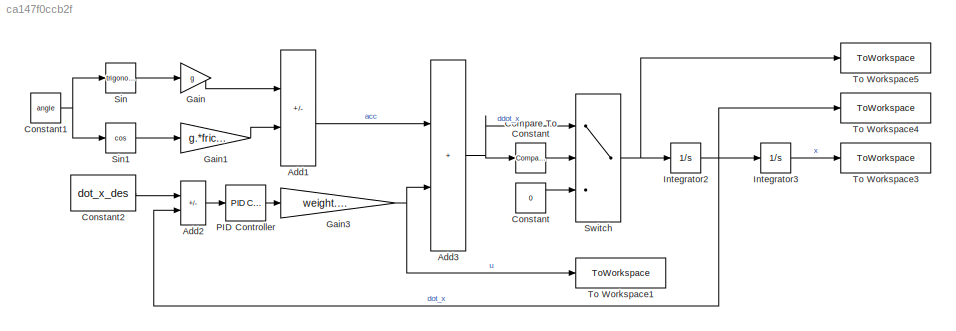
MODEL slx_ca147f0ccb2f
KIND model
CONFIG AbsTol = auto
CONFIG EnableMultiTasking = off
CONFIG FixedStep = auto
CONFIG MaxStep = 0.01
CONFIG MinStep = auto
CONFIG RelTol = 1e-3
CONFIG SampleTimeConstraint = Unconstrained
CONFIG SolverName = VariableStepAuto
CONFIG StartTime = 0.0
CONFIG StopTime = 5
BLOCK [Sum] Add1
  IconShape = rectangular
  Inputs = +-
BLOCK [Sum] Add2
  IconShape = rectangular
  Inputs = +-
BLOCK [Sum] Add3
  IconShape = rectangular
BLOCK [Reference] Compare To Constant  REF=simulink/Logic and Bit
Operations/Compare
To Constant
  SourceBlock = simulink/Logic and Bit\nOperations/Compare\nTo Constant
  SourceType = Compare To Constant
BLOCK [Constant] Constant
  Value = 0
BLOCK [Constant] Constant1
  Value = angle
BLOCK [Constant] Constant2
  Value = dot_x_des
BLOCK [Gain] Gain
  Gain = g
BLOCK [Gain] Gain1
  Gain = g.*friction
BLOCK [Gain] Gain3
  Gain = weight./friction
BLOCK [Integrator] Integrator2
BLOCK [Integrator] Integrator3
  UpperSaturationLimit = length
BLOCK [Reference] PID Controller  REF=slpidlib/PID Controller
  LibrarySourceBlock = simulink/Continuous/PID Controller
  SourceBlock = slpidlib/PID Controller
  SourceType = PID 1dof
BLOCK [Trigonometry] Sin
BLOCK [Trigonometry] Sin1
  Operator = cos
BLOCK [Switch] Switch
  Criteria = u2 > Threshold
  InputSameDT = off
  SaturateOnIntegerOverflow = off
BLOCK [ToWorkspace] To Workspace1
  FixptAsFi = on
  MaxDataPoints = inf
  SampleTime = -1
  SaveFormat = Timeseries
  VariableName = u
BLOCK [ToWorkspace] To Workspace3
  FixptAsFi = on
  MaxDataPoints = inf
  SampleTime = -1
  SaveFormat = Timeseries
  VariableName = x
BLOCK [ToWorkspace] To Workspace4
  FixptAsFi = on
  MaxDataPoints = inf
  SampleTime = -1
  SaveFormat = Timeseries
  VariableName = dot_x
BLOCK [ToWorkspace] To Workspace5
  FixptAsFi = on
  MaxDataPoints = inf
  SampleTime = -1
  SaveFormat = Timeseries
  VariableName = ddot_x
LINE Add1:1 -> Add3:1
LINE Add2:1 -> PID Controller:1
NET Add3:1 -> Compare To Constant:1, Switch:1
LINE Compare To Constant:1 -> Switch:2
NET Constant1:1 -> Sin1:1, Sin:1
LINE Constant2:1 -> Add2:1
LINE Constant:1 -> Switch:3
LINE Gain1:1 -> Add1:2
NET Gain3:1 -> Add3:2, To Workspace1:1
LINE Gain:1 -> Add1:1
NET Integrator2:1 -> Add2:2, Integrator3:1, To Workspace4:1
LINE Integrator3:1 -> To Workspace3:1
LINE PID Controller:1 -> Gain3:1
LINE Sin1:1 -> Gain1:1
LINE Sin:1 -> Gain:1
NET Switch:1 -> Integrator2:1, To Workspace5:1
note: NET lines group one-source signal fan-out (src -> all destinations, sorted); 1:1 wires keep LINE
